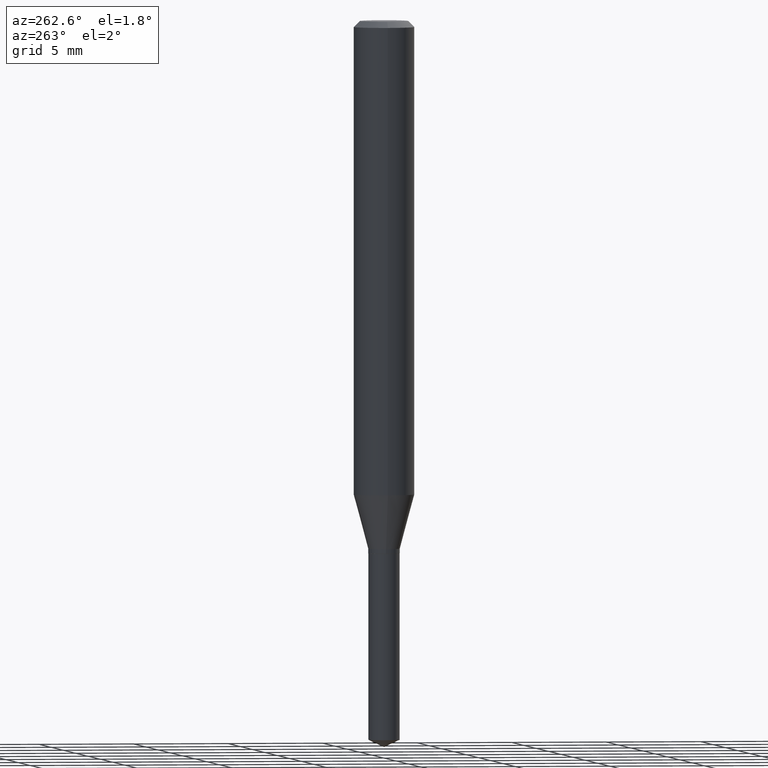
[diagram: clean part render]
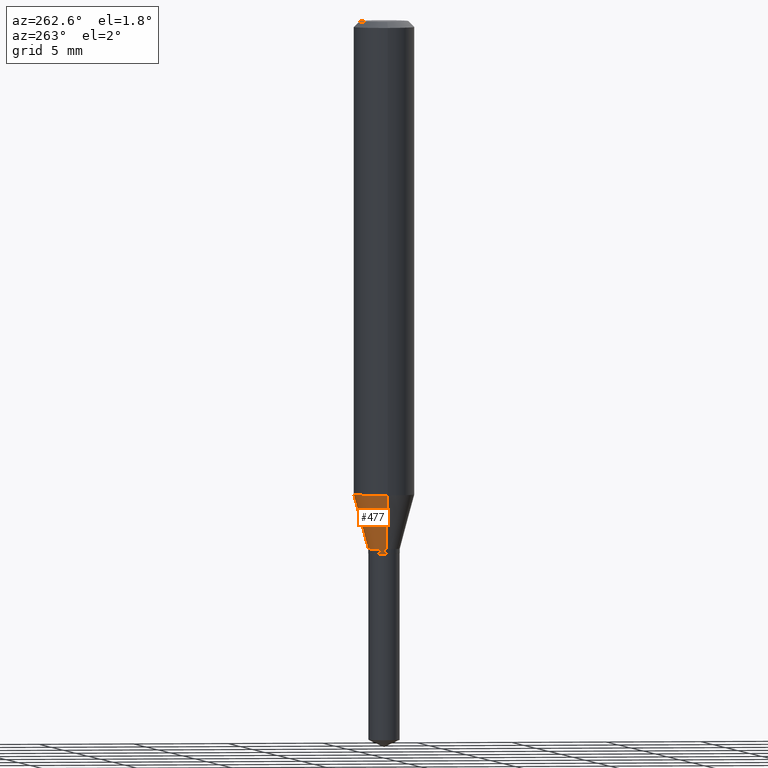
[diagram: same view with one face highlighted and labeled with its STEP entity id]
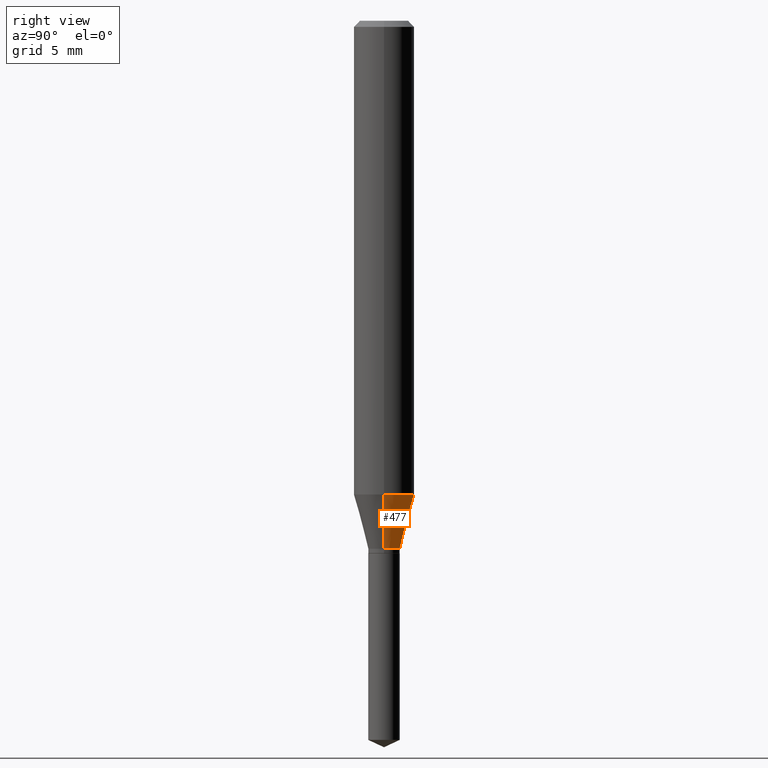
[diagram: same view with one face highlighted and labeled with its STEP entity id]
A machine part, auxiliary view. The second image highlights one B-rep face of the part: STEP entity #477.
A second angle (right view) of the same face is appended — the face is thin or edge-on in the first view.
In plain terms, the highlighted conical surface has half-angle 15 deg.
Its self-contained STEP definition (entity closure, byte-faithful):
#2 = CARTESIAN_POINT ( 'NONE',  ( 0.03250000000000000111, -4.033359242631601195E-15, -1.090200000000000058 ) ) ;
#20 = DIRECTION ( 'NONE',  ( 1.000000000000000000, -6.982962677686273810E-15, 0.000000000000000000 ) ) ;
#25 = ORIENTED_EDGE ( 'NONE', *, *, #289, .F. ) ;
#35 = CARTESIAN_POINT ( 'NONE',  ( 2.392251677512803216E-29, -3.415501383099560055E-15, -0.9782384757729334357 ) ) ;
#39 = CARTESIAN_POINT ( 'NONE',  ( 0.06250000000000012490, -3.851936550454952513E-15, -0.9782384757729334357 ) ) ;
#51 = CARTESIAN_POINT ( 'NONE',  ( 0.03250000000000000111, -4.033359242631601195E-15, -1.090200000000000058 ) ) ;
#65 = VERTEX_POINT ( 'NONE', #196 ) ;
#66 = VECTOR ( 'NONE', #474, 39.37007874015748854 ) ;
#85 = DIRECTION ( 'NONE',  ( 1.000000000000000000, -6.982962677686273810E-15, 0.000000000000000000 ) ) ;
#97 = CONICAL_SURFACE ( 'NONE', #397, 0.03250000000000000111, 0.2617993877991499074 ) ;
#100 = VERTEX_POINT ( 'NONE', #2 ) ;
#105 = EDGE_CURVE ( 'NONE', #100, #483, #217, .T. ) ;
#118 = DIRECTION ( 'NONE',  ( -0.2588190451025211836, 5.211531920934547886E-15, 0.9659258262890679791 ) ) ;
#132 = FACE_OUTER_BOUND ( 'NONE', #144, .T. ) ;
#144 = EDGE_LOOP ( 'NONE', ( #419, #229, #25, #407 ) ) ;
#154 = DIRECTION ( 'NONE',  ( -2.445468806185136597E-29, 3.491481338843145583E-15, 1.000000000000000000 ) ) ;
#176 = AXIS2_PLACEMENT_3D ( 'NONE', #35, #488, #181 ) ;
#181 = DIRECTION ( 'NONE',  ( 1.000000000000000000, -6.982962677686264344E-15, 0.000000000000000000 ) ) ;
#196 = CARTESIAN_POINT ( 'NONE',  ( -0.06250000000000012490, -2.971412173249496256E-15, -0.9782384757729334357 ) ) ;
#207 = EDGE_CURVE ( 'NONE', #483, #65, #422, .T. ) ;
#217 = CIRCLE ( 'NONE', #279, 0.03250000000000000111 ) ;
#223 = CARTESIAN_POINT ( 'NONE',  ( -0.03250000000000000111, -3.575486566484764683E-15, -1.090200000000000058 ) ) ;
#229 = ORIENTED_EDGE ( 'NONE', *, *, #207, .T. ) ;
#243 = DIRECTION ( 'NONE',  ( -2.445468806185136597E-29, 3.491481338843145583E-15, 1.000000000000000000 ) ) ;
#257 = CIRCLE ( 'NONE', #176, 0.06250000000000012490 ) ;
#279 = AXIS2_PLACEMENT_3D ( 'NONE', #315, #154, #85 ) ;
#282 = CARTESIAN_POINT ( 'NONE',  ( 2.666050092503035832E-29, -3.806412955606797054E-15, -1.090200000000000058 ) ) ;
#289 = EDGE_CURVE ( 'NONE', #333, #65, #257, .T. ) ;
#315 = CARTESIAN_POINT ( 'NONE',  ( 2.666050092503035832E-29, -3.806412955606797054E-15, -1.090200000000000058 ) ) ;
#324 = CARTESIAN_POINT ( 'NONE',  ( -0.03250000000000000111, -3.591721954710385060E-15, -1.090200000000000058 ) ) ;
#333 = VERTEX_POINT ( 'NONE', #39 ) ;
#361 = VECTOR ( 'NONE', #118, 39.37007874015748854 ) ;
#390 = LINE ( 'NONE', #51, #66 ) ;
#397 = AXIS2_PLACEMENT_3D ( 'NONE', #282, #243, #20 ) ;
#406 = EDGE_CURVE ( 'NONE', #100, #333, #390, .T. ) ;
#407 = ORIENTED_EDGE ( 'NONE', *, *, #406, .F. ) ;
#419 = ORIENTED_EDGE ( 'NONE', *, *, #105, .T. ) ;
#422 = LINE ( 'NONE', #223, #361 ) ;
#474 = DIRECTION ( 'NONE',  ( 0.2588190451025211836, 1.565188264969622559E-15, 0.9659258262890679791 ) ) ;
#477 = ADVANCED_FACE ( 'NONE', ( #132 ), #97, .T. ) ;
#483 = VERTEX_POINT ( 'NONE', #324 ) ;
#488 = DIRECTION ( 'NONE',  ( -2.445468806185136597E-29, 3.491481338843145583E-15, 1.000000000000000000 ) ) ;